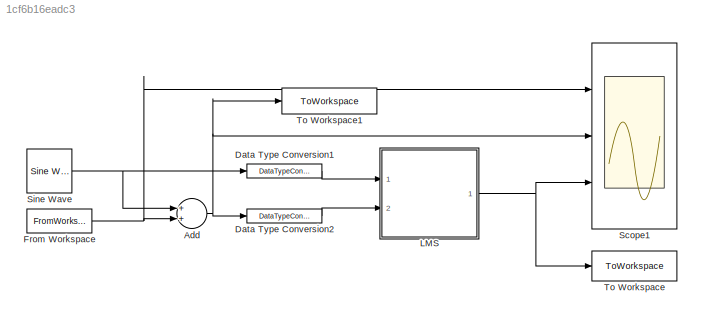
MODEL slx_1cf6b16eadc3
KIND model
CONFIG AbsTol = auto
CONFIG FixedStep = auto
CONFIG InitFcn = setup;\n\n
CONFIG MaxStep = auto
CONFIG MinStep = auto
CONFIG RelTol = 1e-3
CONFIG SampleTimeConstraint = Unconstrained
CONFIG Solver = FixedStepDiscrete
CONFIG SolverMode = Auto
CONFIG SolverName = FixedStepDiscrete
CONFIG StartTime = 0.0
CONFIG StopTime = (samples-1)/fs
BLOCK [Sum] Add
  InputSameDT = off
  OutDataTypeStr = Inherit: Inherit via internal rule
  Ports = [2, 1]
  SaturateOnIntegerOverflow = off
BLOCK [DataTypeConversion] Data Type Conversion1
  OutDataTypeStr = fixdt(1,16,14)
  RndMeth = Floor
  SaturateOnIntegerOverflow = off
BLOCK [DataTypeConversion] Data Type Conversion2
  OutDataTypeStr = fixdt(1,16,14)
  RndMeth = Floor
  SaturateOnIntegerOverflow = off
BLOCK [FromWorkspace] From Workspace
  Interpolate = off
  OutputAfterFinalValue = Holding final value
  SampleTime = 1/fs
  VariableName = audio_in
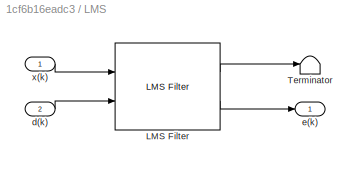
BLOCK [SubSystem] LMS
  Ports = [2, 1]
  RequestExecContextInheritance = off
  TreatAsAtomicUnit = on
BLOCK [Reference] LMS/LMS Filter  REF=dspadpt3/LMS Filter
  Adapt = off
  Algo = LMS
  L = 16
  LockScale = off
  Ports = [2, 2]
  ShowPortLabels = off
  SourceBlock = dspadpt3/LMS Filter
  SourceType = LMS Filter
  accum2FracLength = 20
  accum2Mode = User-defined
  accumFracLength = 20
  accumMode = Same as first input
  accumWordLength = 32
  addnparflag = off
  firstCoeffFracLength = 15
  firstCoeffMode = Same word length as first input
  firstCoeffWordLength = 16
  ic = 0
  leakage = 1.0
  memoryFracLength = 15
  memoryMode = Same as first input
  memoryWordLength = 16
  mu = 0.125
  overflowMode = off
  prodOutput2FracLength = 20
  prodOutput2Mode = User-defined
  prodOutput3FracLength = 20
  prodOutput3Mode = User-defined
  prodOutput4FracLength = 20
  prodOutput4Mode = User-defined
  prodOutputFracLength = 20
  prodOutputMode = Same as first input
  prodOutputWordLength = 32
  quotientFracLength = 20
  quotientMode = User-defined
  resetflag = None
  roundingMode = Convergent
  secondCoeffFracLength = 15
  secondCoeffMode = User-defined
  secondCoeffWordLength = 2
  stepflag = Dialog
  weights = off
BLOCK [Terminator] LMS/Terminator
BLOCK [Inport] LMS/d(k)
  IconDisplay = Port number
  Port = 2
BLOCK [Outport] LMS/e(k)
  IconDisplay = Port number
BLOCK [Inport] LMS/x(k)
  IconDisplay = Port number
BLOCK [Scope] Scope1
  DataFormat = StructureWithTime
  Floating = off
  MaxDataPoints = samples
  NumInputPorts = 3
  Ports = [3]
  SampleTime = 0
  YMax = 0.5~1.5~1
  YMin = -0.5~-1.25~-1
  ZoomMode = xonly
BLOCK [Reference] Sine Wave  REF=dspsrcs4/Sine Wave
  Amplitude = 0.75
  CompMethod = Table lookup
  Frequency = 0.25*fs
  LastOutDataTypeStr = fixdt(1,16,14)
  OutComplex = Real
  OutDataTypeStr = fixdt(1,16,14)
  Phase = 0
  Ports = [0, 1]
  ResetState = Restart at time zero
  SampleMode = Discrete
  SampleTime = 1/fs
  SamplesPerFrame = 1
  SourceBlock = dspsrcs4/Sine Wave
  SourceType = Sine Wave
  TableSize = Speed
  additionalParams = off
  allowOverrides = on
  dataType = Fixed-point
  fracBitsMode = User-defined
  numFracBits = 14
  udDataType = sfix(16)
  wordLen = 16
BLOCK [ToWorkspace] To Workspace
  MaxDataPoints = inf
  Ports = [1]
  SampleTime = -1
  VariableName = filtered_audio
BLOCK [ToWorkspace] To Workspace1
  MaxDataPoints = inf
  Ports = [1]
  SampleTime = -1
  VariableName = corrupt_audio
NET Add:1 -> Data Type Conversion2:1, Scope1:2, To Workspace1:1
LINE Data Type Conversion1:1 -> LMS:1
LINE Data Type Conversion2:1 -> LMS:2
NET From Workspace:1 -> Add:2, Scope1:1
LINE LMS/LMS Filter:1 -> LMS/Terminator:1
LINE LMS/LMS Filter:2 -> LMS/e(k):1
LINE LMS/d(k):1 -> LMS/LMS Filter:2
LINE LMS/x(k):1 -> LMS/LMS Filter:1
NET LMS:1 -> Scope1:3, To Workspace:1
NET Sine Wave:1 -> Add:1, Data Type Conversion1:1
note: NET lines group one-source signal fan-out (src -> all destinations, sorted); 1:1 wires keep LINE
